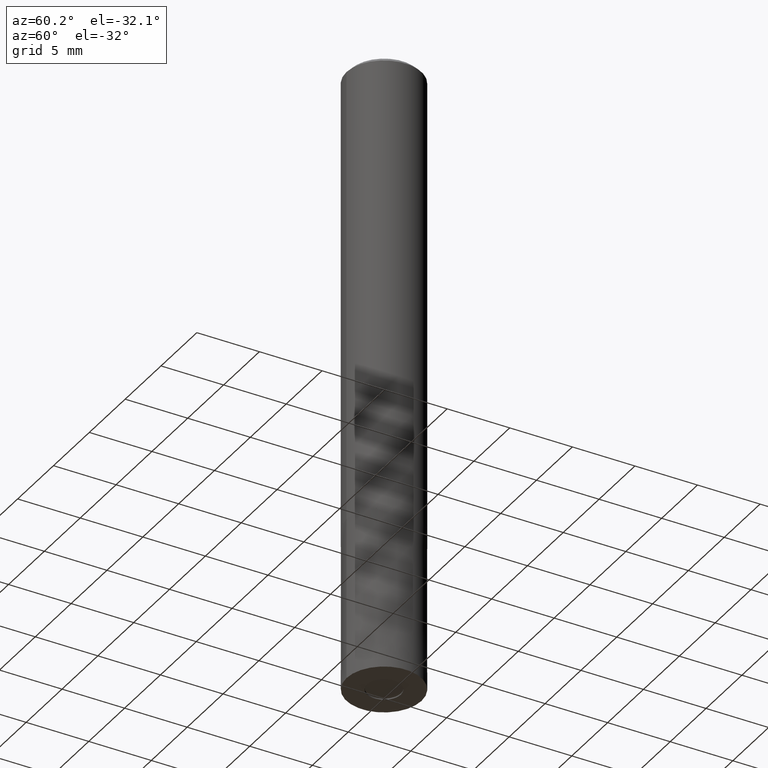
[diagram: clean part render]
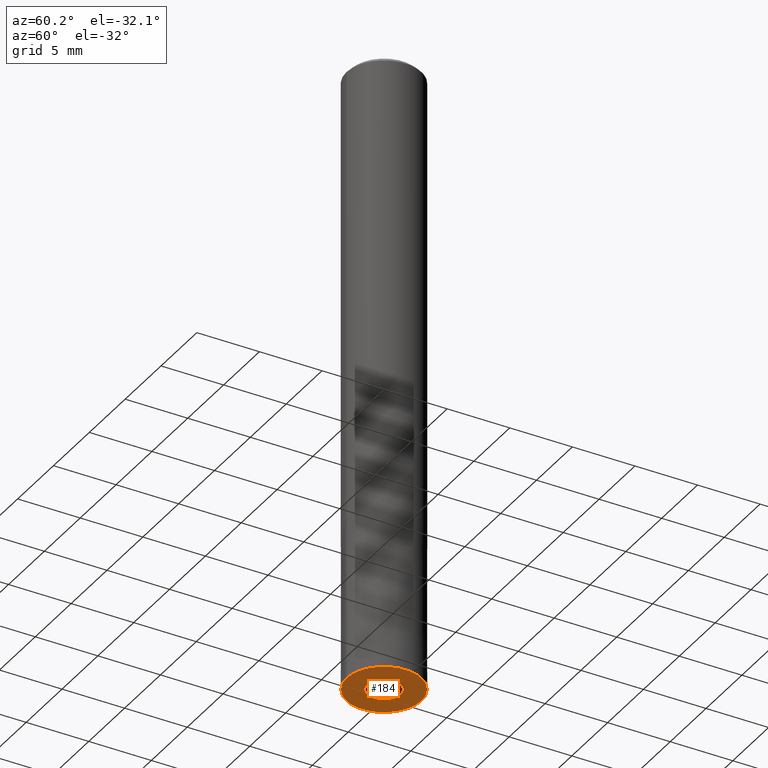
[diagram: same view with one face highlighted and labeled with its STEP entity id]
A machine part, auxiliary view. The second image highlights one B-rep face of the part: STEP entity #184.
In plain terms, the highlighted planar face has unit normal (0, 0, -1).
Its self-contained STEP definition (entity closure, byte-faithful):
#124=VERTEX_POINT('',#273);
#140=VERTEX_POINT('',#291);
#142=VERTEX_POINT('',#293);
#146=EDGE_CURVE('',#142,#176,#297,.T.);
#148=EDGE_CURVE('',#176,#142,#299,.T.);
#162=EDGE_CURVE('',#140,#124,#315,.T.);
#176=VERTEX_POINT('',#331);
#184=ADVANCED_FACE('',(#340,#341),#342,.T.);
#220=EDGE_CURVE('',#124,#140,#383,.T.);
#273=CARTESIAN_POINT('',(0.0,3.0,-50.0));
#291=CARTESIAN_POINT('',(3.67381906146713E-016,-3.0,-50.0));
#293=CARTESIAN_POINT('',(1.65321857766021E-016,-1.35,-50.0));
#297=CIRCLE('',#468,1.35);
#299=CIRCLE('',#471,1.35);
#315=CIRCLE('',#490,3.0);
#331=CARTESIAN_POINT('',(0.0,1.35,-50.0));
#340=FACE_OUTER_BOUND('',#519,.T.);
#341=FACE_BOUND('',#520,.T.);
#342=PLANE('',#521);
#383=CIRCLE('',#574,3.0);
#468=AXIS2_PLACEMENT_3D('',#628,#629,#630);
#471=AXIS2_PLACEMENT_3D('',#631,#632,#633);
#490=AXIS2_PLACEMENT_3D('',#655,#656,#657);
#519=EDGE_LOOP('',(#688,#689));
#520=EDGE_LOOP('',(#690,#691));
#521=AXIS2_PLACEMENT_3D('',#692,#693,#694);
#574=AXIS2_PLACEMENT_3D('',#755,#756,#757);
#628=CARTESIAN_POINT('',(0.0,0.0,-50.0));
#629=DIRECTION('',(0.0,0.0,-1.0));
#630=DIRECTION('',(0.0,1.0,0.0));
#631=CARTESIAN_POINT('',(0.0,0.0,-50.0));
#632=DIRECTION('',(0.0,0.0,-1.0));
#633=DIRECTION('',(0.0,1.0,0.0));
#655=CARTESIAN_POINT('',(0.0,0.0,-50.0));
#656=DIRECTION('',(0.0,0.0,-1.0));
#657=DIRECTION('',(0.0,1.0,0.0));
#688=ORIENTED_EDGE('',*,*,#220,.T.);
#689=ORIENTED_EDGE('',*,*,#162,.T.);
#690=ORIENTED_EDGE('',*,*,#148,.F.);
#691=ORIENTED_EDGE('',*,*,#146,.F.);
#692=CARTESIAN_POINT('',(0.0,2.1725,-50.0));
#693=DIRECTION('',(0.0,0.0,-1.0));
#694=DIRECTION('',(0.0,1.0,0.0));
#755=CARTESIAN_POINT('',(0.0,0.0,-50.0));
#756=DIRECTION('',(0.0,0.0,-1.0));
#757=DIRECTION('',(0.0,1.0,0.0));